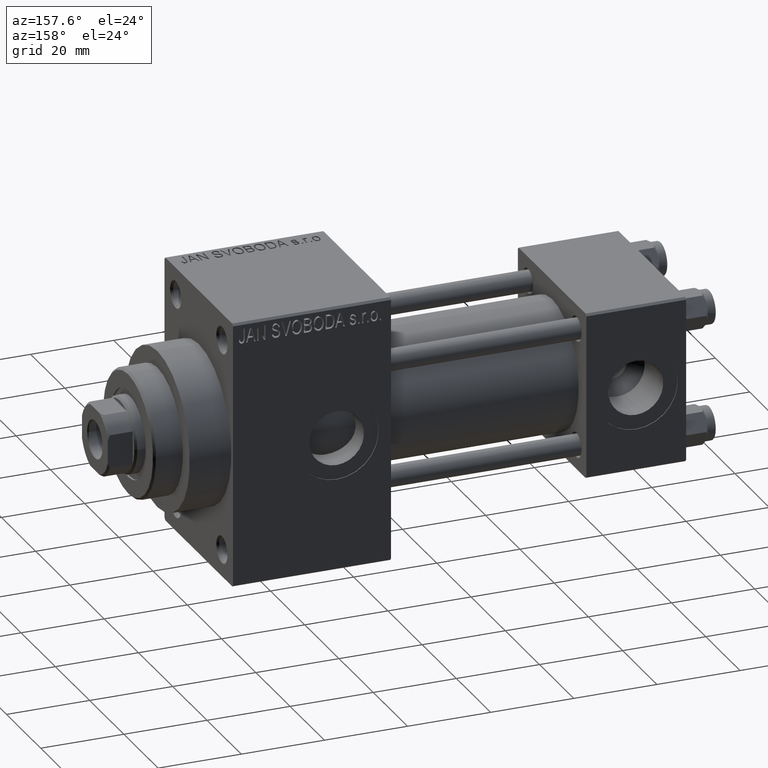
[diagram: clean part render]
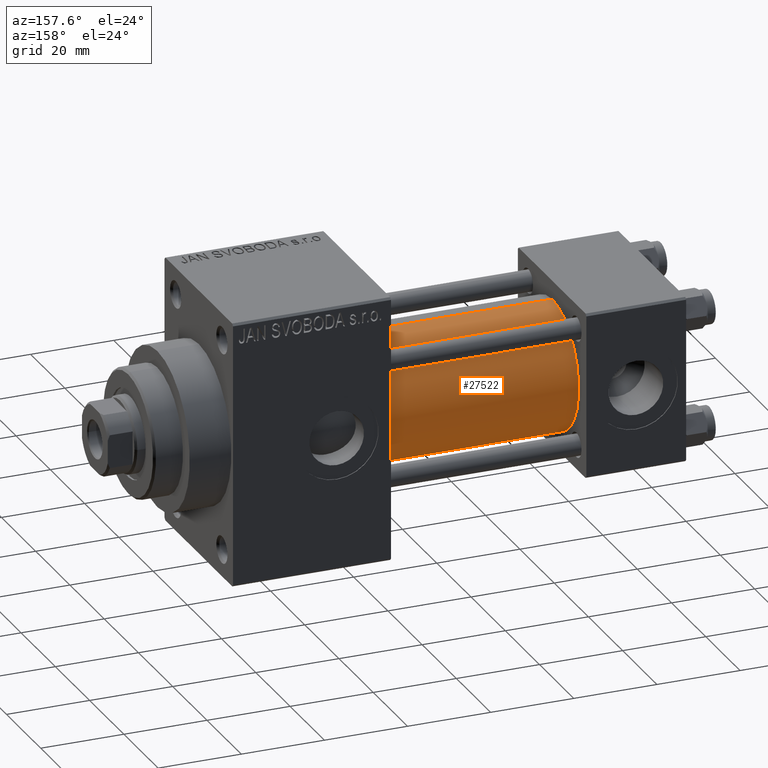
[diagram: same view with one face highlighted and labeled with its STEP entity id]
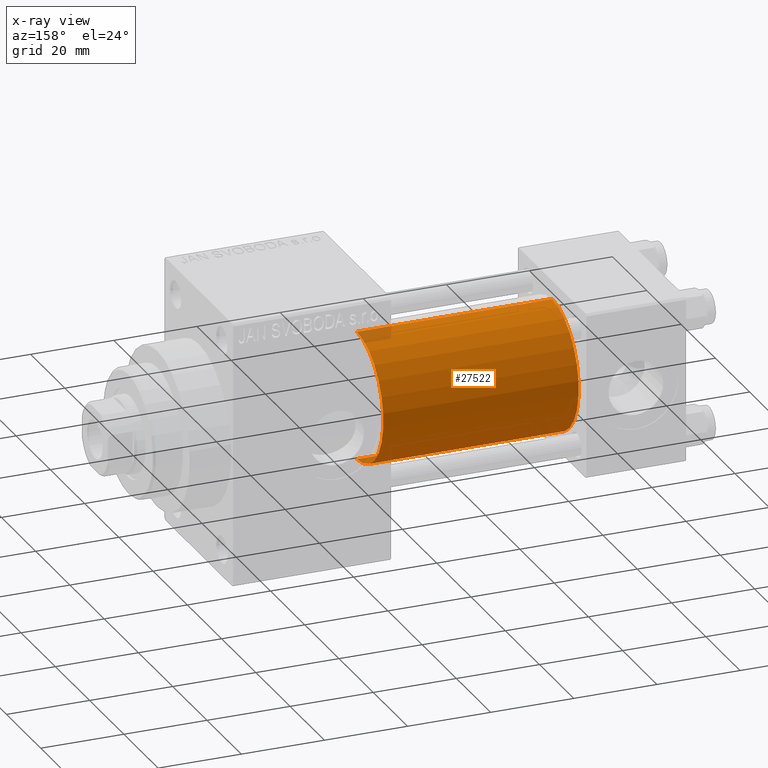
[diagram: x-ray of the same camera — body ghosted, the highlighted face saturated]
A machine part, auxiliary view. The second image highlights one B-rep face of the part: STEP entity #27522.
The next image is the same camera in x-ray: the body ghosted, the highlighted face saturated — about 2% of this face is hidden behind the body in this view.
In plain terms, the highlighted cylindrical surface (partial cylindrical patch) has radius 15.5 mm, axis along (-1, -0, -0).
Its self-contained STEP definition (entity closure, byte-faithful):
#3292 = LINE ( 'NONE', #18300, #24486 ) ;
#6614 = CARTESIAN_POINT ( 'NONE',  ( 71.00000000000001421, -2.602085213965210642E-15, 0.000000000000000000 ) ) ;
#8096 = EDGE_CURVE ( 'NONE', #12835, #24194, #3292, .T. ) ;
#8128 = CARTESIAN_POINT ( 'NONE',  ( 71.00000000000001421, -2.602085213965210642E-15, 15.50000000000000000 ) ) ;
#9430 = CIRCLE ( 'NONE', #28287, 15.50000000000000000 ) ;
#12835 = VERTEX_POINT ( 'NONE', #8128 ) ;
#14241 = DIRECTION ( 'NONE',  ( 0.000000000000000000, 0.000000000000000000, -1.000000000000000000 ) ) ;
#15090 = EDGE_CURVE ( 'NONE', #42439, #28699, #26737, .T. ) ;
#15502 = ORIENTED_EDGE ( 'NONE', *, *, #8096, .F. ) ;
#17260 = ORIENTED_EDGE ( 'NONE', *, *, #36954, .T. ) ;
#18255 = ORIENTED_EDGE ( 'NONE', *, *, #15090, .T. ) ;
#18300 = CARTESIAN_POINT ( 'NONE',  ( 71.00000000000001421, -2.602085213965210642E-15, 15.50000000000000000 ) ) ;
#18396 = CARTESIAN_POINT ( 'NONE',  ( 71.00000000000001421, -7.038826752868131828E-16, -15.50000000000000000 ) ) ;
#19035 = DIRECTION ( 'NONE',  ( -1.000000000000000000, -0.000000000000000000, -0.000000000000000000 ) ) ;
#20536 = CIRCLE ( 'NONE', #24456, 15.50000000000000000 ) ;
#22722 = EDGE_LOOP ( 'NONE', ( #25535, #18255, #17260, #15502 ) ) ;
#24194 = VERTEX_POINT ( 'NONE', #27734 ) ;
#24456 = AXIS2_PLACEMENT_3D ( 'NONE', #6614, #28985, #14241 ) ;
#24486 = VECTOR ( 'NONE', #33302, 1000.000000000000000 ) ;
#25535 = ORIENTED_EDGE ( 'NONE', *, *, #43180, .F. ) ;
#26737 = LINE ( 'NONE', #41025, #44373 ) ;
#27522 = ADVANCED_FACE ( 'NONE', ( #48580 ), #45377, .T. ) ;
#27734 = CARTESIAN_POINT ( 'NONE',  ( 24.00000000000000000, -2.602085213965210642E-15, 15.50000000000000000 ) ) ;
#28287 = AXIS2_PLACEMENT_3D ( 'NONE', #32456, #36877, #44275 ) ;
#28699 = VERTEX_POINT ( 'NONE', #28916 ) ;
#28916 = CARTESIAN_POINT ( 'NONE',  ( 24.00000000000000000, -7.038826752868131828E-16, -15.50000000000000000 ) ) ;
#28985 = DIRECTION ( 'NONE',  ( 1.000000000000000000, 0.000000000000000000, 0.000000000000000000 ) ) ;
#29367 = CARTESIAN_POINT ( 'NONE',  ( 71.00000000000001421, -2.602085213965210642E-15, 0.000000000000000000 ) ) ;
#32456 = CARTESIAN_POINT ( 'NONE',  ( 24.00000000000000000, -2.602085213965210642E-15, 0.000000000000000000 ) ) ;
#33302 = DIRECTION ( 'NONE',  ( -1.000000000000000000, -0.000000000000000000, -0.000000000000000000 ) ) ;
#35986 = AXIS2_PLACEMENT_3D ( 'NONE', #29367, #19035, #37735 ) ;
#36877 = DIRECTION ( 'NONE',  ( 1.000000000000000000, 0.000000000000000000, 0.000000000000000000 ) ) ;
#36954 = EDGE_CURVE ( 'NONE', #28699, #24194, #9430, .T. ) ;
#37735 = DIRECTION ( 'NONE',  ( 0.000000000000000000, 0.000000000000000000, 1.000000000000000000 ) ) ;
#40778 = DIRECTION ( 'NONE',  ( -1.000000000000000000, -0.000000000000000000, -0.000000000000000000 ) ) ;
#41025 = CARTESIAN_POINT ( 'NONE',  ( 71.00000000000001421, -7.038826752868131828E-16, -15.50000000000000000 ) ) ;
#42439 = VERTEX_POINT ( 'NONE', #18396 ) ;
#43180 = EDGE_CURVE ( 'NONE', #42439, #12835, #20536, .T. ) ;
#44275 = DIRECTION ( 'NONE',  ( 0.000000000000000000, 0.000000000000000000, 1.000000000000000000 ) ) ;
#44373 = VECTOR ( 'NONE', #40778, 1000.000000000000000 ) ;
#45377 = CYLINDRICAL_SURFACE ( 'NONE', #35986, 15.50000000000000000 ) ;
#48580 = FACE_OUTER_BOUND ( 'NONE', #22722, .T. ) ;